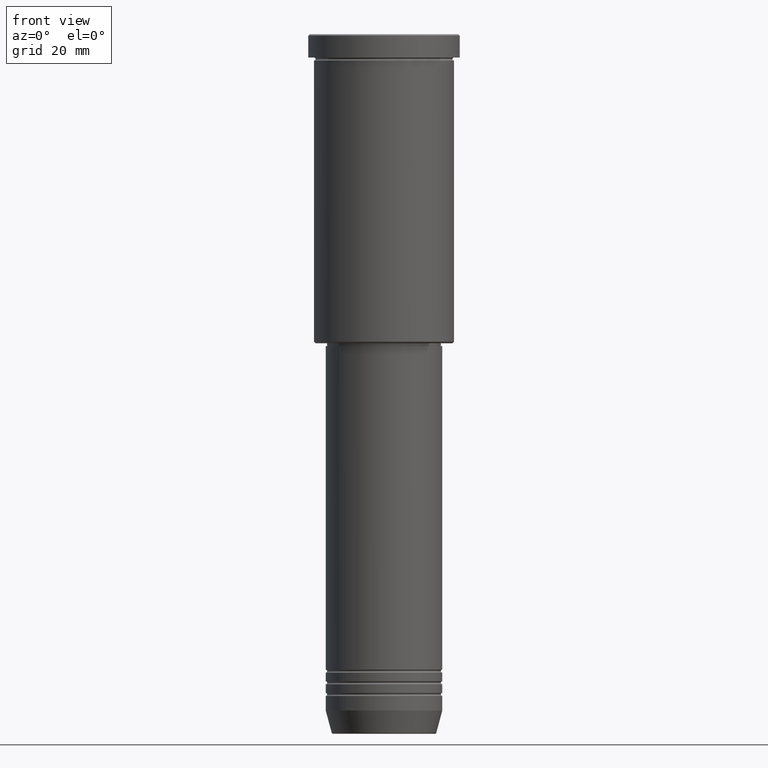
[diagram: clean part render]
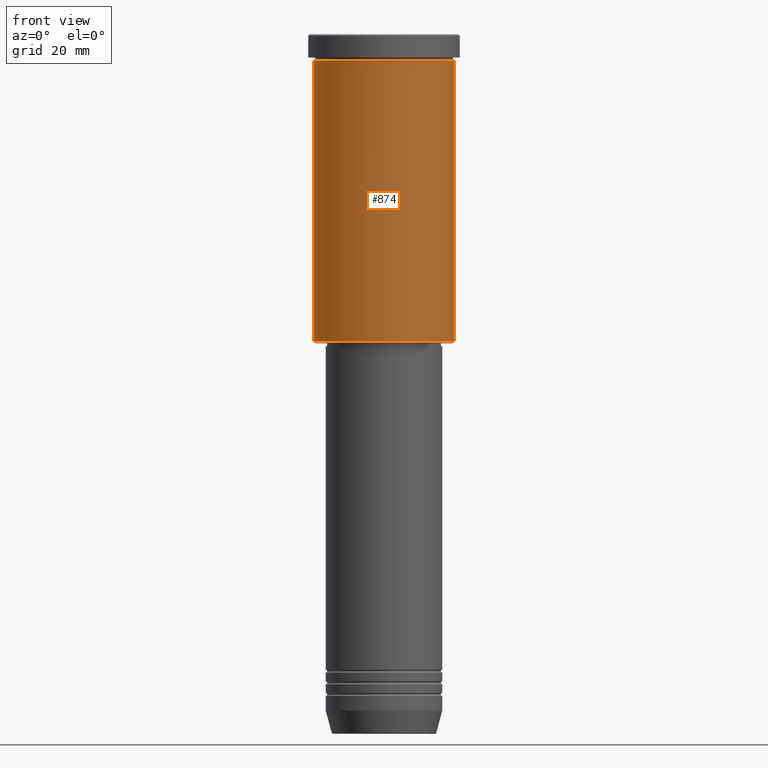
[diagram: same view with one face highlighted and labeled with its STEP entity id]
A machine part, front view. The second image highlights one B-rep face of the part: STEP entity #874.
In plain terms, the highlighted cylindrical surface (partial cylindrical patch) has radius 24 mm, axis along (-0, -0, 1).
Its self-contained STEP definition (entity closure, byte-faithful):
#2 = LINE ( 'NONE', #370, #1009 ) ;
#43 = DIRECTION ( 'NONE',  ( 1.000000000000000000, 0.000000000000000000, 0.000000000000000000 ) ) ;
#71 = DIRECTION ( 'NONE',  ( -0.000000000000000000, -0.000000000000000000, 1.000000000000000000 ) ) ;
#133 = EDGE_CURVE ( 'NONE', #1001, #407, #784, .T. ) ;
#134 = DIRECTION ( 'NONE',  ( -0.000000000000000000, -0.000000000000000000, 1.000000000000000000 ) ) ;
#190 = DIRECTION ( 'NONE',  ( -0.000000000000000000, -0.000000000000000000, 1.000000000000000000 ) ) ;
#193 = CARTESIAN_POINT ( 'NONE',  ( 0.000000000000000000, 0.000000000000000000, 0.000000000000000000 ) ) ;
#248 = FACE_OUTER_BOUND ( 'NONE', #707, .T. ) ;
#285 = LINE ( 'NONE', #568, #298 ) ;
#293 = DIRECTION ( 'NONE',  ( -0.000000000000000000, -0.000000000000000000, 1.000000000000000000 ) ) ;
#298 = VECTOR ( 'NONE', #190, 1000.000000000000000 ) ;
#325 = CARTESIAN_POINT ( 'NONE',  ( 24.00000000000000000, 0.000000000000000000, -8.999999999999994671 ) ) ;
#326 = ORIENTED_EDGE ( 'NONE', *, *, #993, .T. ) ;
#358 = CYLINDRICAL_SURFACE ( 'NONE', #369, 24.00000000000000000 ) ;
#369 = AXIS2_PLACEMENT_3D ( 'NONE', #193, #814, #604 ) ;
#370 = CARTESIAN_POINT ( 'NONE',  ( 24.00000000000000000, 0.000000000000000000, 0.000000000000000000 ) ) ;
#407 = VERTEX_POINT ( 'NONE', #551 ) ;
#428 = EDGE_CURVE ( 'NONE', #1001, #1002, #285, .T. ) ;
#445 = DIRECTION ( 'NONE',  ( -1.000000000000000000, 0.000000000000000000, 0.000000000000000000 ) ) ;
#489 = CIRCLE ( 'NONE', #728, 24.00000000000000000 ) ;
#495 = CARTESIAN_POINT ( 'NONE',  ( -24.00000000000000000, 2.939152317953647894E-15, -105.5000000000000284 ) ) ;
#542 = EDGE_CURVE ( 'NONE', #1002, #553, #489, .T. ) ;
#551 = CARTESIAN_POINT ( 'NONE',  ( 24.00000000000000000, 0.000000000000000000, -105.5000000000000284 ) ) ;
#553 = VERTEX_POINT ( 'NONE', #325 ) ;
#568 = CARTESIAN_POINT ( 'NONE',  ( -24.00000000000000000, 2.939152317953647894E-15, 0.000000000000000000 ) ) ;
#604 = DIRECTION ( 'NONE',  ( 1.000000000000000000, 0.000000000000000000, 0.000000000000000000 ) ) ;
#707 = EDGE_LOOP ( 'NONE', ( #826, #825, #326, #897 ) ) ;
#728 = AXIS2_PLACEMENT_3D ( 'NONE', #952, #134, #43 ) ;
#784 = CIRCLE ( 'NONE', #1073, 24.00000000000000000 ) ;
#814 = DIRECTION ( 'NONE',  ( -0.000000000000000000, -0.000000000000000000, 1.000000000000000000 ) ) ;
#825 = ORIENTED_EDGE ( 'NONE', *, *, #133, .T. ) ;
#826 = ORIENTED_EDGE ( 'NONE', *, *, #428, .F. ) ;
#874 = ADVANCED_FACE ( 'NONE', ( #248 ), #358, .T. ) ;
#897 = ORIENTED_EDGE ( 'NONE', *, *, #542, .F. ) ;
#952 = CARTESIAN_POINT ( 'NONE',  ( 0.000000000000000000, 0.000000000000000000, -8.999999999999994671 ) ) ;
#993 = EDGE_CURVE ( 'NONE', #407, #553, #2, .T. ) ;
#1001 = VERTEX_POINT ( 'NONE', #495 ) ;
#1002 = VERTEX_POINT ( 'NONE', #1082 ) ;
#1009 = VECTOR ( 'NONE', #293, 1000.000000000000000 ) ;
#1073 = AXIS2_PLACEMENT_3D ( 'NONE', #1100, #71, #445 ) ;
#1082 = CARTESIAN_POINT ( 'NONE',  ( -24.00000000000000000, 2.939152317953647894E-15, -8.999999999999994671 ) ) ;
#1100 = CARTESIAN_POINT ( 'NONE',  ( 0.000000000000000000, 0.000000000000000000, -105.5000000000000284 ) ) ;